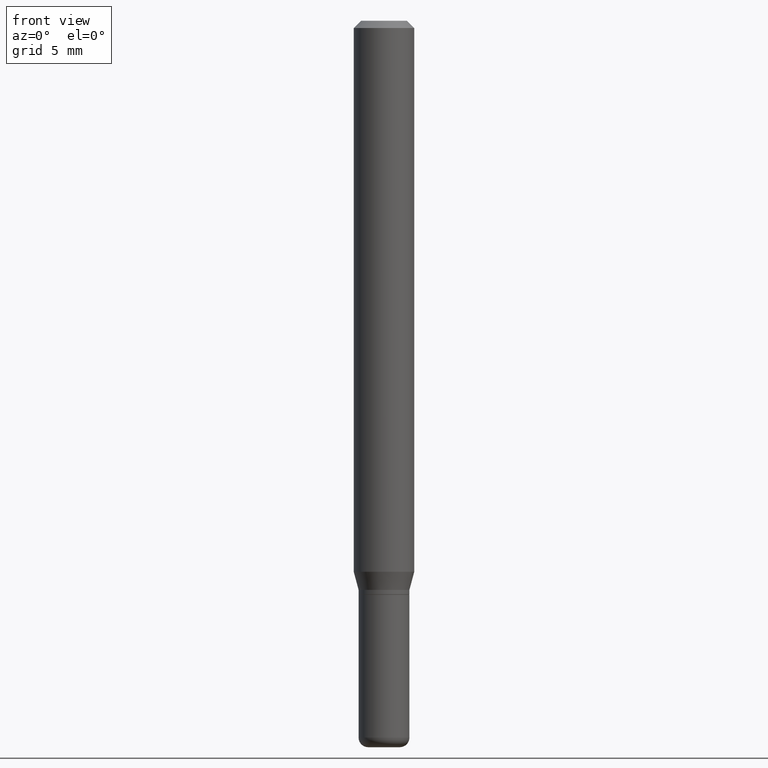
[diagram: clean part render]
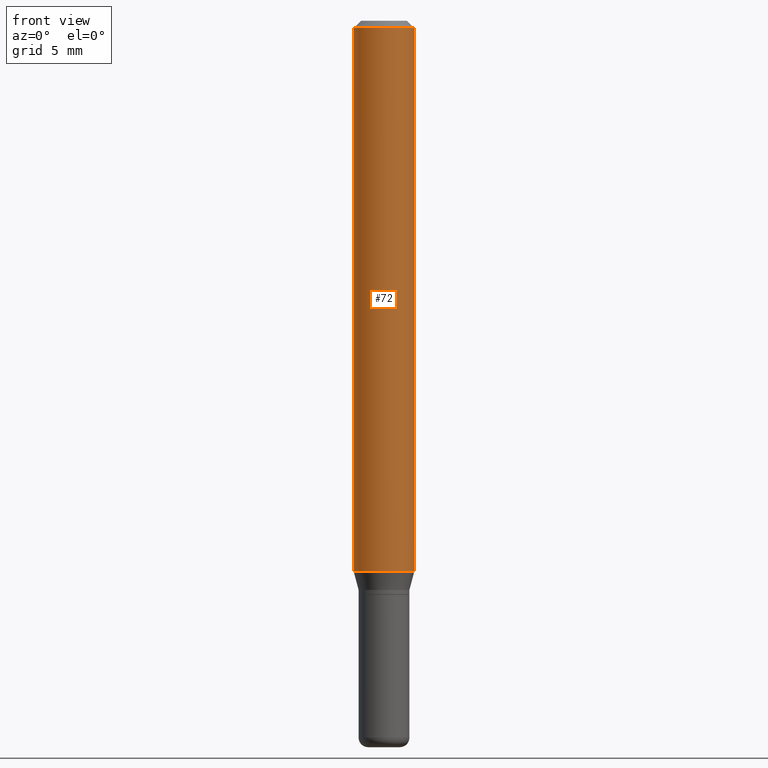
[diagram: same view with one face highlighted and labeled with its STEP entity id]
A machine part, front view. The second image highlights one B-rep face of the part: STEP entity #72.
In plain terms, the highlighted cylindrical surface (edge-blend (fillet) strip) has radius 1.5875 mm, axis along (-0, 0, 1).
Its self-contained STEP definition (entity closure, byte-faithful):
#34 = DIRECTION ( 'NONE',  ( -2.445468806185136597E-29, 3.491481338843145583E-15, 1.000000000000000000 ) ) ;
#36 = CARTESIAN_POINT ( 'NONE',  ( -0.06250000000000000000, 4.440892098500626162E-16, -3.074334431409316114E-30 ) ) ;
#72 = ADVANCED_FACE ( 'NONE', ( #277 ), #318, .T. ) ;
#111 = AXIS2_PLACEMENT_3D ( 'NONE', #445, #206, #449 ) ;
#125 = CARTESIAN_POINT ( 'NONE',  ( 0.000000000000000000, 0.000000000000000000, 0.000000000000000000 ) ) ;
#134 = AXIS2_PLACEMENT_3D ( 'NONE', #238, #34, #236 ) ;
#141 = AXIS2_PLACEMENT_3D ( 'NONE', #125, #483, #482 ) ;
#179 = CARTESIAN_POINT ( 'NONE',  ( 0.06250000000000000000, -4.364351673553916694E-16, 3.047610484872459871E-30 ) ) ;
#206 = DIRECTION ( 'NONE',  ( -2.445468806185136597E-29, 3.491481338843145583E-15, 1.000000000000000000 ) ) ;
#211 = EDGE_CURVE ( 'NONE', #319, #347, #274, .T. ) ;
#227 = ORIENTED_EDGE ( 'NONE', *, *, #402, .F. ) ;
#231 = CARTESIAN_POINT ( 'NONE',  ( -0.06250000000000000000, -1.568190258010402571E-15, -0.01499999999999970281 ) ) ;
#236 = DIRECTION ( 'NONE',  ( 1.000000000000000000, -6.982962677686266711E-15, 0.000000000000000000 ) ) ;
#238 = CARTESIAN_POINT ( 'NONE',  ( 3.668203209277632395E-31, -5.237222008264614861E-17, -0.01499999999999970281 ) ) ;
#257 = CARTESIAN_POINT ( 'NONE',  ( -0.06250000000000000000, -3.528097505788221863E-15, -1.137679491924311392 ) ) ;
#271 = EDGE_CURVE ( 'NONE', #347, #338, #416, .T. ) ;
#274 = CIRCLE ( 'NONE', #111, 0.06250000000000000000 ) ;
#277 = FACE_OUTER_BOUND ( 'NONE', #302, .T. ) ;
#302 = EDGE_LOOP ( 'NONE', ( #227, #426, #457, #473 ) ) ;
#304 = CARTESIAN_POINT ( 'NONE',  ( 0.06250000000000000000, -4.408621882993675754E-15, -1.137679491924311392 ) ) ;
#316 = CIRCLE ( 'NONE', #134, 0.06250000000000000000 ) ;
#318 = CYLINDRICAL_SURFACE ( 'NONE', #141, 0.06250000000000000000 ) ;
#319 = VERTEX_POINT ( 'NONE', #257 ) ;
#338 = VERTEX_POINT ( 'NONE', #385 ) ;
#347 = VERTEX_POINT ( 'NONE', #304 ) ;
#385 = CARTESIAN_POINT ( 'NONE',  ( 0.06250000000000000000, -4.888073874380378612E-16, -0.01499999999999970281 ) ) ;
#392 = LINE ( 'NONE', #36, #484 ) ;
#402 = EDGE_CURVE ( 'NONE', #319, #485, #392, .T. ) ;
#416 = LINE ( 'NONE', #179, #511 ) ;
#426 = ORIENTED_EDGE ( 'NONE', *, *, #211, .T. ) ;
#445 = CARTESIAN_POINT ( 'NONE',  ( 2.782159708937458673E-29, -3.972186715638284085E-15, -1.137679491924311392 ) ) ;
#449 = DIRECTION ( 'NONE',  ( 1.000000000000000000, -6.982962677686270655E-15, 0.000000000000000000 ) ) ;
#457 = ORIENTED_EDGE ( 'NONE', *, *, #271, .T. ) ;
#473 = ORIENTED_EDGE ( 'NONE', *, *, #491, .F. ) ;
#476 = DIRECTION ( 'NONE',  ( -2.445468806185136877E-29, 3.491481338843145188E-15, 1.000000000000000000 ) ) ;
#482 = DIRECTION ( 'NONE',  ( 1.000000000000000000, -6.982962677686266711E-15, 4.876176775795935793E-29 ) ) ;
#483 = DIRECTION ( 'NONE',  ( -2.445468806185136597E-29, 3.491481338843145583E-15, 1.000000000000000000 ) ) ;
#484 = VECTOR ( 'NONE', #476, 39.37007874015748143 ) ;
#485 = VERTEX_POINT ( 'NONE', #231 ) ;
#491 = EDGE_CURVE ( 'NONE', #485, #338, #316, .T. ) ;
#505 = DIRECTION ( 'NONE',  ( -2.445468806185136877E-29, 3.491481338843145188E-15, 1.000000000000000000 ) ) ;
#511 = VECTOR ( 'NONE', #505, 39.37007874015748143 ) ;